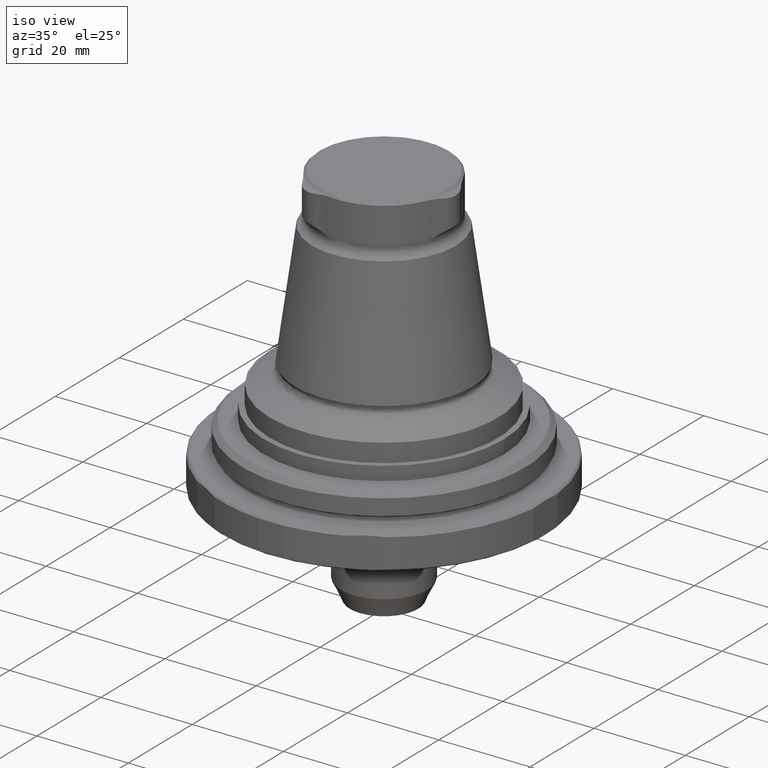
[diagram: clean part render]
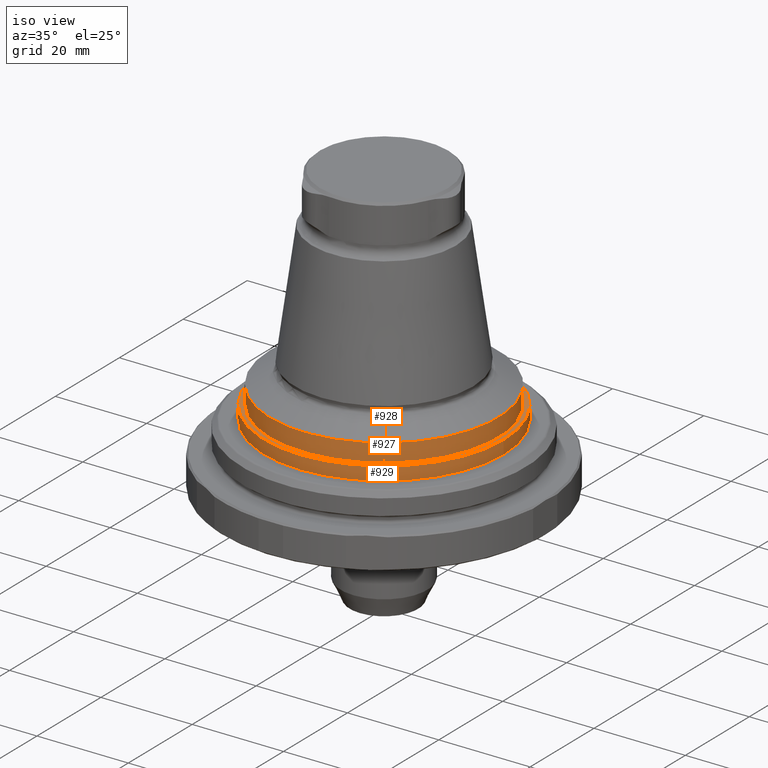
[diagram: same view with one multi-face feature highlighted, each face labeled with its STEP entity id]
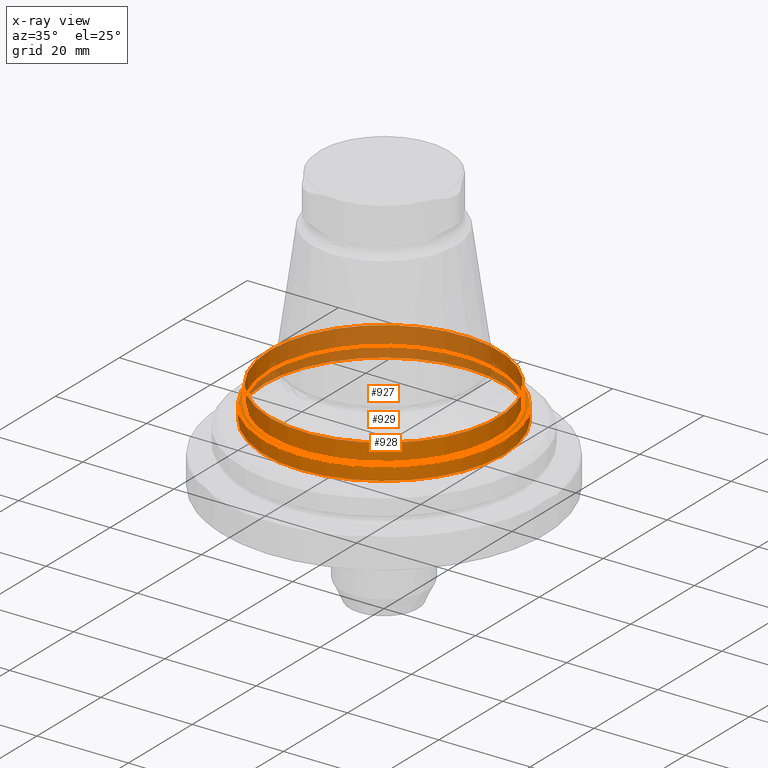
[diagram: x-ray of the same camera — body ghosted, the whole feature saturated]
A machine part, iso view. The highlighted faces form ONE feature: a stepped (counterbored) hole: 2 coaxial cylindrical walls of radii 25 -> 26.2 mm joined by 1 annular planar shoulder face(s). The faces share edges in the B-rep.
The next image is the same camera in x-ray: the body ghosted and the whole hole feature saturated, so the bore chain is visible through the body.
Their STEP definitions:
[1] entity #929 (Cylinder):
#139=CIRCLE('',#1033,26.2);
#140=CIRCLE('',#1035,26.2);
#292=ORIENTED_EDGE('',*,*,#482,.T.);
#293=ORIENTED_EDGE('',*,*,#483,.T.);
#482=EDGE_CURVE('',#589,#589,#139,.T.);
#483=EDGE_CURVE('',#590,#590,#140,.T.);
#589=VERTEX_POINT('',#1618);
#590=VERTEX_POINT('',#1621);
#724=EDGE_LOOP('',(#292));
#725=EDGE_LOOP('',(#293));
#820=FACE_BOUND('',#724,.T.);
#821=FACE_BOUND('',#725,.T.);
#883=CYLINDRICAL_SURFACE('',#1034,26.2);
#929=ADVANCED_FACE('',(#820,#821),#883,.T.);
#1033=AXIS2_PLACEMENT_3D('',#1617,#1225,#1226);
#1034=AXIS2_PLACEMENT_3D('',#1619,#1227,#1228);
#1035=AXIS2_PLACEMENT_3D('',#1620,#1229,#1230);
#1225=DIRECTION('',(-5.5264198129461E-16,6.90472036344684E-17,-1.));
#1226=DIRECTION('',(-1.,9.77164313006873E-16,5.58279830278911E-16));
#1227=DIRECTION('',(5.5264198129461E-16,-7.81688594334958E-18,1.));
#1228=DIRECTION('',(1.,-9.77164313006873E-16,-5.58279830278911E-16));
#1229=DIRECTION('',(5.5264198129461E-16,5.34134317477693E-17,1.));
#1230=DIRECTION('',(1.,-9.77164313006873E-16,-5.58279830278911E-16));
#1617=CARTESIAN_POINT('',(-8.94460880349363E-14,-9.81718178561464E-14,8.50000000000001));
#1618=CARTESIAN_POINT('',(-26.2000000000001,-7.25701128553663E-14,8.50000000000003));
#1619=CARTESIAN_POINT('',(-9.02750510068783E-14,-9.81600925272314E-14,7.00000000000001));
#1620=CARTESIAN_POINT('',(-8.02869289039323E-14,-9.81483671983164E-14,5.50000000000001));
#1621=CARTESIAN_POINT('',(26.1999999999999,-1.23750072199096E-13,5.5));
[2] entity #927 (Cylinder):
#137=CIRCLE('',#1029,25.);
#138=CIRCLE('',#1031,25.);
#288=ORIENTED_EDGE('',*,*,#480,.T.);
#289=ORIENTED_EDGE('',*,*,#481,.F.);
#480=EDGE_CURVE('',#587,#587,#137,.T.);
#481=EDGE_CURVE('',#588,#588,#138,.T.);
#587=VERTEX_POINT('',#1612);
#588=VERTEX_POINT('',#1615);
#720=EDGE_LOOP('',(#288));
#721=EDGE_LOOP('',(#289));
#816=FACE_BOUND('',#720,.T.);
#817=FACE_BOUND('',#721,.T.);
#882=CYLINDRICAL_SURFACE('',#1030,25.);
#927=ADVANCED_FACE('',(#816,#817),#882,.T.);
#1029=AXIS2_PLACEMENT_3D('',#1611,#1217,#1218);
#1030=AXIS2_PLACEMENT_3D('',#1613,#1219,#1220);
#1031=AXIS2_PLACEMENT_3D('',#1614,#1221,#1222);
#1217=DIRECTION('',(-4.38328612912168E-16,-8.51929322185263E-24,-1.));
#1218=DIRECTION('',(-1.,9.77164313006873E-16,4.38328610599545E-16));
#1219=DIRECTION('',(-4.38328612912168E-16,-8.51929322185263E-24,-1.));
#1220=DIRECTION('',(-1.,9.77164313006873E-16,4.38328610599545E-16));
#1221=DIRECTION('',(-4.38328612912168E-16,-8.51929322185263E-24,-1.));
#1222=DIRECTION('',(-1.,9.77164313006873E-16,4.38328610599545E-16));
#1611=CARTESIAN_POINT('',(-8.2284770010017E-14,-9.81645350618484E-14,12.498889300107));
#1612=CARTESIAN_POINT('',(-25.0000000000001,-7.37354272366765E-14,12.498889300107));
#1613=CARTESIAN_POINT('',(-6.36558039612498E-14,-9.81645346997784E-14,54.998889300107));
#1614=CARTESIAN_POINT('',(-8.40375976101222E-14,-9.81645350959161E-14,8.50000000000001));
#1615=CARTESIAN_POINT('',(-25.0000000000001,-7.37354272707442E-14,8.50000000000002));
[3] entity #928 (Plane):
#100=PLANE('',#1032);
#138=CIRCLE('',#1031,25.);
#139=CIRCLE('',#1033,26.2);
#290=ORIENTED_EDGE('',*,*,#482,.F.);
#291=ORIENTED_EDGE('',*,*,#481,.T.);
#481=EDGE_CURVE('',#588,#588,#138,.T.);
#482=EDGE_CURVE('',#589,#589,#139,.T.);
#588=VERTEX_POINT('',#1615);
#589=VERTEX_POINT('',#1618);
#722=EDGE_LOOP('',(#290));
#723=EDGE_LOOP('',(#291));
#818=FACE_BOUND('',#722,.T.);
#819=FACE_BOUND('',#723,.T.);
#928=ADVANCED_FACE('',(#818,#819),#100,.T.);
#1031=AXIS2_PLACEMENT_3D('',#1614,#1221,#1222);
#1032=AXIS2_PLACEMENT_3D('',#1616,#1223,#1224);
#1033=AXIS2_PLACEMENT_3D('',#1617,#1225,#1226);
#1221=DIRECTION('',(-4.38328612912168E-16,-8.51929322185263E-24,-1.));
#1222=DIRECTION('',(-1.,9.77164313006873E-16,4.38328610599545E-16));
#1223=DIRECTION('',(5.5264198129461E-16,-6.90472036344684E-17,1.));
#1224=DIRECTION('',(-3.55103316543315E-16,1.,6.90471738482395E-17));
#1225=DIRECTION('',(-5.5264198129461E-16,6.90472036344684E-17,-1.));
#1226=DIRECTION('',(-1.,9.77164313006873E-16,5.58279830278911E-16));
#1614=CARTESIAN_POINT('',(-8.40375976101222E-14,-9.81645350959161E-14,8.50000000000001));
#1615=CARTESIAN_POINT('',(-25.0000000000001,-7.37354272707442E-14,8.50000000000002));
#1616=CARTESIAN_POINT('',(-8.40375454974924E-14,-9.81718178561464E-14,8.50000000000001));
#1617=CARTESIAN_POINT('',(-8.94460880349363E-14,-9.81718178561464E-14,8.50000000000001));
#1618=CARTESIAN_POINT('',(-26.2000000000001,-7.25701128553663E-14,8.50000000000003));